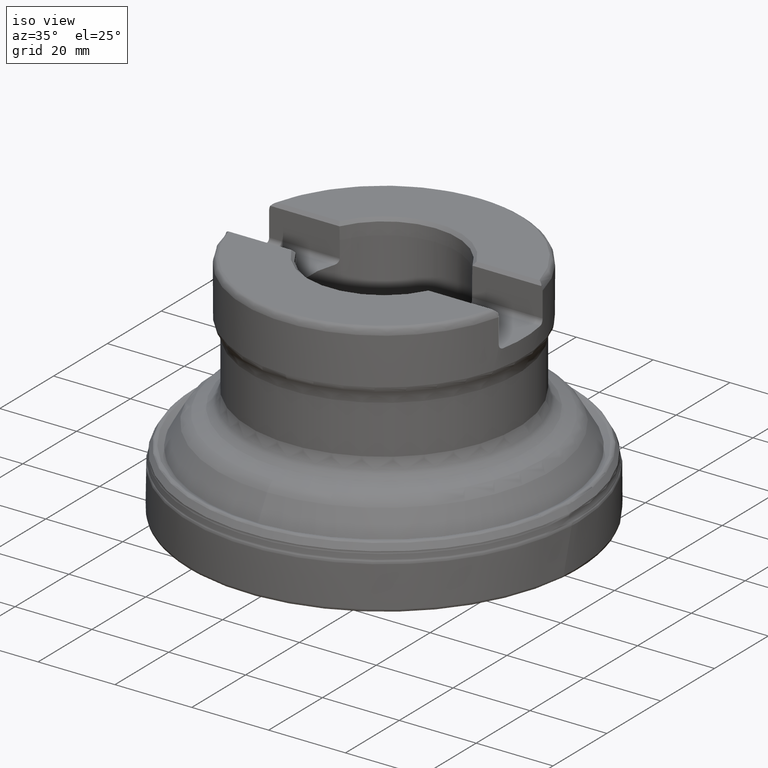
[diagram: clean part render]
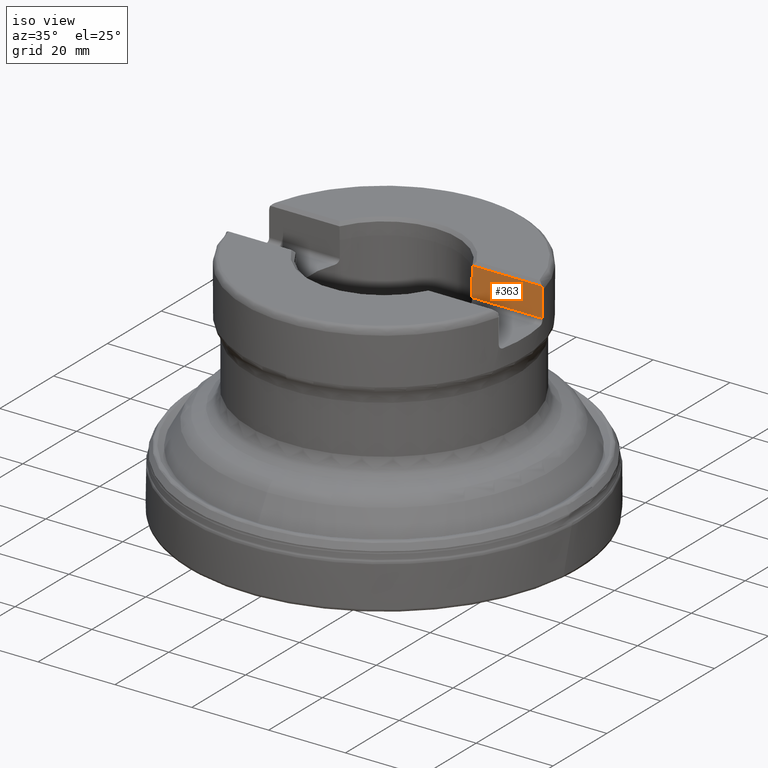
[diagram: same view with one face highlighted and labeled with its STEP entity id]
A machine part, iso view. The second image highlights one B-rep face of the part: STEP entity #363.
In plain terms, the highlighted planar face has unit normal (-0, -1, 0).
Its self-contained STEP definition (entity closure, byte-faithful):
#363=ADVANCED_FACE('',(#455),#438,.T.);
#438=PLANE('',#1177);
#455=FACE_OUTER_BOUND('',#477,.T.);
#477=EDGE_LOOP('',(#671,#672,#673,#674,#675,#676,#677));
#611=LINE('',#1912,#638);
#612=LINE('',#1927,#639);
#613=LINE('',#1929,#640);
#614=LINE('',#1931,#641);
#638=VECTOR('',#1305,1.);
#639=VECTOR('',#1306,1.);
#640=VECTOR('',#1307,1.);
#641=VECTOR('',#1308,1.);
#671=ORIENTED_EDGE('',*,*,#1003,.T.);
#672=ORIENTED_EDGE('',*,*,#1004,.T.);
#673=ORIENTED_EDGE('',*,*,#1005,.T.);
#674=ORIENTED_EDGE('',*,*,#1006,.F.);
#675=ORIENTED_EDGE('',*,*,#1007,.F.);
#676=ORIENTED_EDGE('',*,*,#1008,.T.);
#677=ORIENTED_EDGE('',*,*,#1009,.T.);
#907=VERTEX_POINT('',#1910);
#908=VERTEX_POINT('',#1911);
#909=VERTEX_POINT('',#1913);
#910=VERTEX_POINT('',#1918);
#911=VERTEX_POINT('',#1926);
#912=VERTEX_POINT('',#1928);
#913=VERTEX_POINT('',#1930);
#1003=EDGE_CURVE('',#907,#908,#1134,.T.);
#1004=EDGE_CURVE('',#908,#909,#611,.T.);
#1005=EDGE_CURVE('',#909,#910,#1135,.T.);
#1006=EDGE_CURVE('',#911,#910,#1136,.T.);
#1007=EDGE_CURVE('',#912,#911,#612,.T.);
#1008=EDGE_CURVE('',#912,#913,#613,.T.);
#1009=EDGE_CURVE('',#913,#907,#614,.T.);
#1134=B_SPLINE_CURVE_WITH_KNOTS('',3,(#1903,#1904,#1905,#1906,#1907,#1908,
#1909),.UNSPECIFIED.,.F.,.F.,(4,3,4),(0.,0.630576899160705,1.),
 .UNSPECIFIED.);
#1135=B_SPLINE_CURVE_WITH_KNOTS('',3,(#1914,#1915,#1916,#1917),
 .UNSPECIFIED.,.F.,.F.,(4,4),(0.,1.),.UNSPECIFIED.);
#1136=B_SPLINE_CURVE_WITH_KNOTS('',3,(#1919,#1920,#1921,#1922,#1923,#1924,
#1925),.UNSPECIFIED.,.F.,.F.,(4,3,4),(0.,0.601682681700972,1.),
 .UNSPECIFIED.);
#1177=AXIS2_PLACEMENT_3D('',#1932,#1309,#1310);
#1305=DIRECTION('',(-1.,6.39711790766089E-31,-7.49393809079628E-46));
#1306=DIRECTION('',(1.17145536458252E-15,1.17145536458252E-15,1.));
#1307=DIRECTION('',(1.,-1.37230767120917E-30,-1.17145536458252E-15));
#1308=DIRECTION('',(0.,1.17145536458252E-15,1.));
#1309=DIRECTION('',(-6.39711790766089E-31,-1.,6.25372423561493E-16));
#1310=DIRECTION('',(1.16573417585641E-15,6.26235174827627E-16,1.));
#1903=CARTESIAN_POINT('',(35.5807588451961,8.1400000000001,58.525));
#1904=CARTESIAN_POINT('',(35.5807588451961,8.1400000000001,58.7446019272531));
#1905=CARTESIAN_POINT('',(35.5425503138658,8.14000000000007,58.9672294953716));
#1906=CARTESIAN_POINT('',(35.4695986997269,8.14000000000007,59.1743600543141));
#1907=CARTESIAN_POINT('',(35.4267452303619,8.14000000000007,59.2960333464951));
#1908=CARTESIAN_POINT('',(35.371590119254,8.14000000000007,59.4140183509765));
#1909=CARTESIAN_POINT('',(35.3058338766041,8.14000000000007,59.5249999999972));
#1910=CARTESIAN_POINT('',(35.5807588451961,8.1400000000001,58.525));
#1911=CARTESIAN_POINT('',(35.3058338766041,8.14000000000007,59.5249999999972));
#1912=CARTESIAN_POINT('',(67.0000000000001,8.14000000000007,59.525));
#1913=CARTESIAN_POINT('',(17.3391062539844,8.14000000000007,59.525));
#1914=CARTESIAN_POINT('',(17.3391062539844,8.14000000000007,59.525));
#1915=CARTESIAN_POINT('',(17.3311841641199,8.14000000000007,59.5178288281919));
#1916=CARTESIAN_POINT('',(17.3232616326596,8.14000000000007,59.51065814419));
#1917=CARTESIAN_POINT('',(17.3153386580547,8.14000000000007,59.5034879498876));
#1918=CARTESIAN_POINT('',(17.3153386580547,8.14000000000007,59.5034879498876));
#1919=CARTESIAN_POINT('',(17.2233243016557,8.14000000000007,56.325));
#1920=CARTESIAN_POINT('',(17.2417877371251,8.14000000000007,56.9624801250738));
#1921=CARTESIAN_POINT('',(17.260245756462,8.14000000000007,57.5999604070386));
#1922=CARTESIAN_POINT('',(17.2786984115606,8.14000000000007,58.2374408442547));
#1923=CARTESIAN_POINT('',(17.2909141729948,8.14000000000007,58.6594564782329));
#1924=CARTESIAN_POINT('',(17.3031275835298,8.14000000000007,59.0814721802671));
#1925=CARTESIAN_POINT('',(17.3153386580547,8.14000000000007,59.5034879498876));
#1926=CARTESIAN_POINT('',(17.2233243016557,8.14000000000007,56.325));
#1927=CARTESIAN_POINT('',(17.2233243016556,8.14000000000003,-2.52668871769096E-14));
#1928=CARTESIAN_POINT('',(17.2233243016557,8.14000000000006,51.995));
#1929=CARTESIAN_POINT('',(67.0000000000001,8.14000000000006,51.9949999999999));
#1930=CARTESIAN_POINT('',(35.5807588451961,8.14000000000006,51.995));
#1931=CARTESIAN_POINT('',(35.5807588451961,8.14000000000003,-5.09053152779058E-15));
#1932=CARTESIAN_POINT('',(67.0000000000001,8.14000000000006,50.7949999999999));